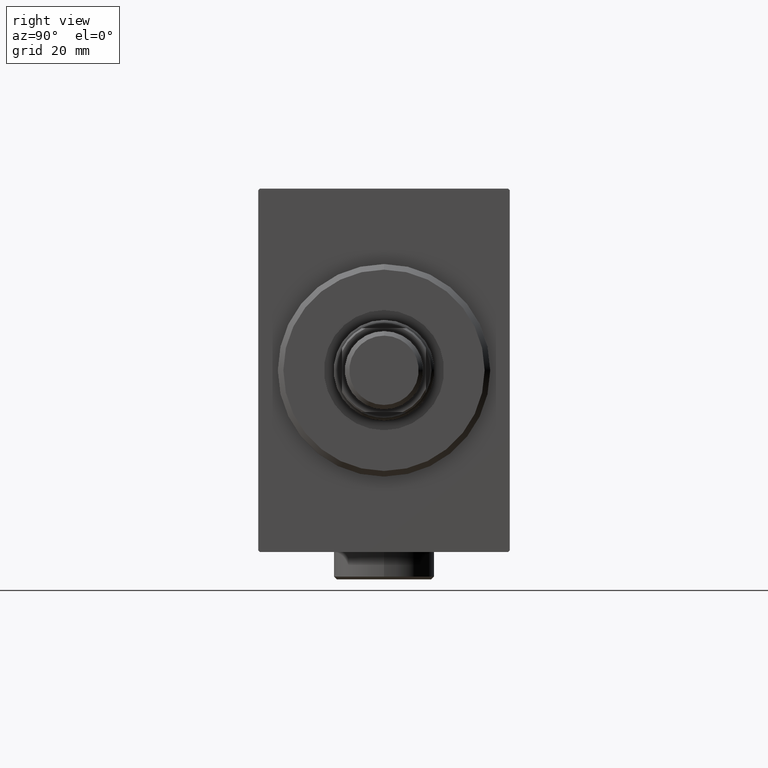
[diagram: clean part render]
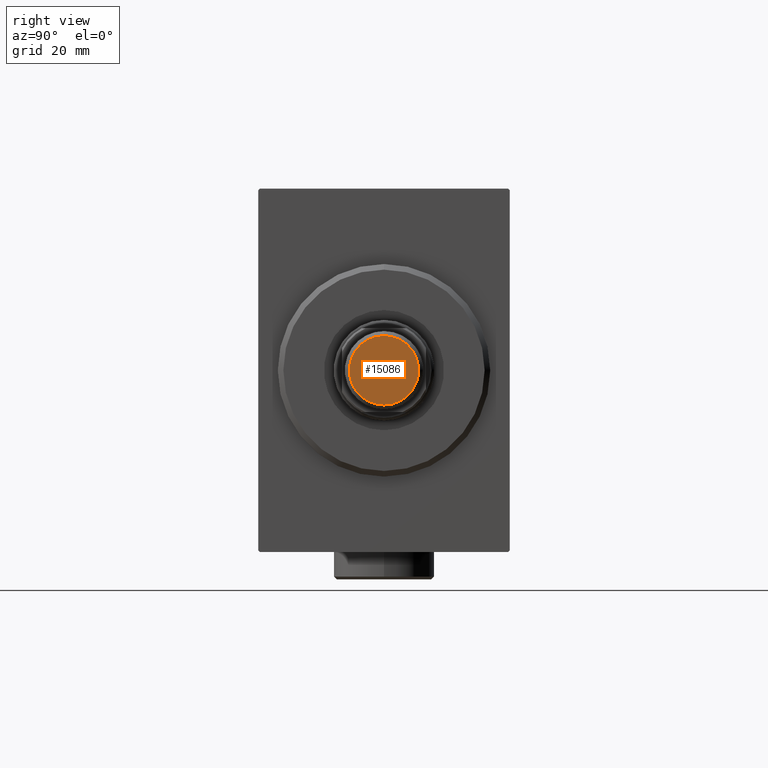
[diagram: same view with one face highlighted and labeled with its STEP entity id]
A machine part, right view. The second image highlights one B-rep face of the part: STEP entity #15086.
In plain terms, the highlighted planar face has unit normal (-1, 0, 0).
Its self-contained STEP definition (entity closure, byte-faithful):
#1142 = VERTEX_POINT ( 'NONE', #8906 ) ;
#1833 = EDGE_LOOP ( 'NONE', ( #24970, #8008 ) ) ;
#4999 = DIRECTION ( 'NONE',  ( 1.000000000000000000, 0.000000000000000000, 0.000000000000000000 ) ) ;
#5252 = AXIS2_PLACEMENT_3D ( 'NONE', #43747, #43517, #40134 ) ;
#8008 = ORIENTED_EDGE ( 'NONE', *, *, #18034, .T. ) ;
#8817 = CARTESIAN_POINT ( 'NONE',  ( 0.000000000000000000, 0.000000000000000000, 0.000000000000000000 ) ) ;
#8906 = CARTESIAN_POINT ( 'NONE',  ( -6.199999999999999289, 8.082668874372528061E-16, 0.000000000000000000 ) ) ;
#11541 = VERTEX_POINT ( 'NONE', #29468 ) ;
#15086 = ADVANCED_FACE ( 'NONE', ( #37378 ), #20682, .F. ) ;
#16033 = CIRCLE ( 'NONE', #5252, 6.199999999999999289 ) ;
#16871 = CARTESIAN_POINT ( 'NONE',  ( 0.000000000000000000, 0.000000000000000000, 0.000000000000000000 ) ) ;
#18034 = EDGE_CURVE ( 'NONE', #1142, #11541, #38345, .T. ) ;
#19545 = AXIS2_PLACEMENT_3D ( 'NONE', #16871, #34440, #44582 ) ;
#19622 = DIRECTION ( 'NONE',  ( -0.000000000000000000, -0.000000000000000000, -1.000000000000000000 ) ) ;
#20682 = PLANE ( 'NONE',  #19545 ) ;
#22892 = EDGE_CURVE ( 'NONE', #11541, #1142, #16033, .T. ) ;
#24970 = ORIENTED_EDGE ( 'NONE', *, *, #22892, .T. ) ;
#29468 = CARTESIAN_POINT ( 'NONE',  ( 6.199999999999999289, 0.000000000000000000, 0.000000000000000000 ) ) ;
#31124 = AXIS2_PLACEMENT_3D ( 'NONE', #8817, #19622, #4999 ) ;
#34440 = DIRECTION ( 'NONE',  ( 0.000000000000000000, 0.000000000000000000, 1.000000000000000000 ) ) ;
#37378 = FACE_OUTER_BOUND ( 'NONE', #1833, .T. ) ;
#38345 = CIRCLE ( 'NONE', #31124, 6.199999999999999289 ) ;
#40134 = DIRECTION ( 'NONE',  ( 1.000000000000000000, 0.000000000000000000, 0.000000000000000000 ) ) ;
#43517 = DIRECTION ( 'NONE',  ( -0.000000000000000000, -0.000000000000000000, -1.000000000000000000 ) ) ;
#43747 = CARTESIAN_POINT ( 'NONE',  ( 0.000000000000000000, 0.000000000000000000, 0.000000000000000000 ) ) ;
#44582 = DIRECTION ( 'NONE',  ( 1.000000000000000000, 0.000000000000000000, -0.000000000000000000 ) ) ;